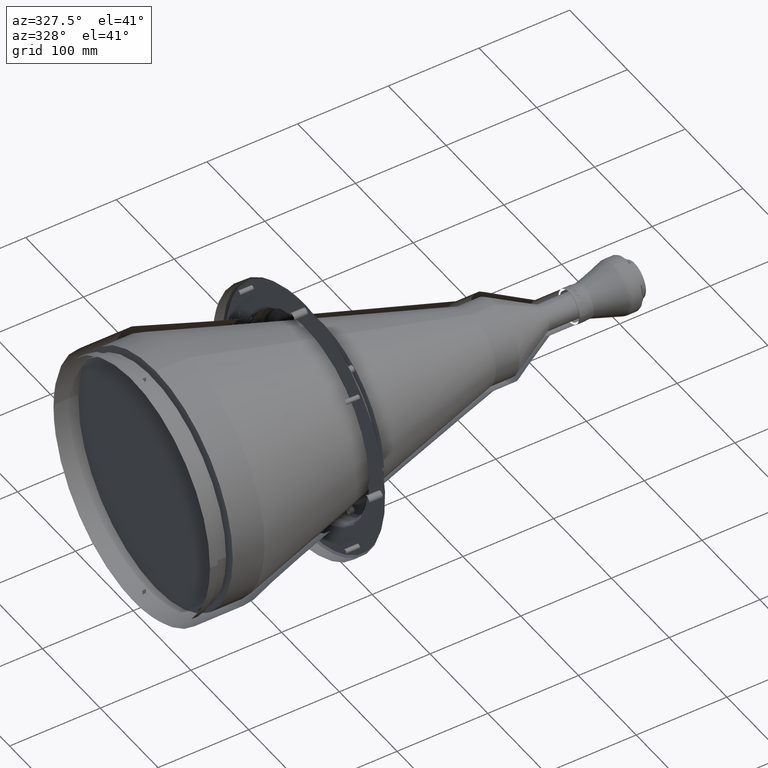
[diagram: clean part render]
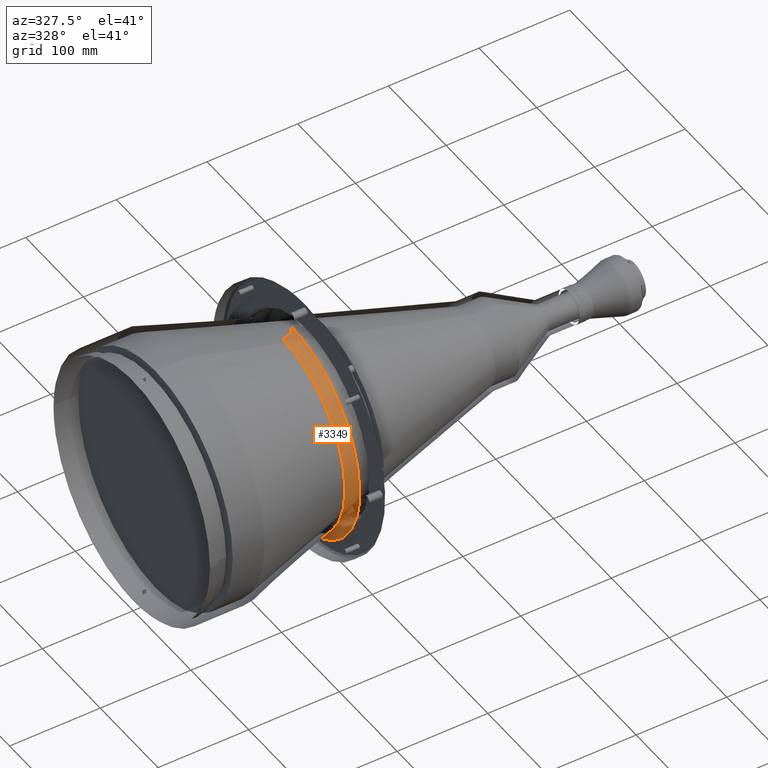
[diagram: same view with one face highlighted and labeled with its STEP entity id]
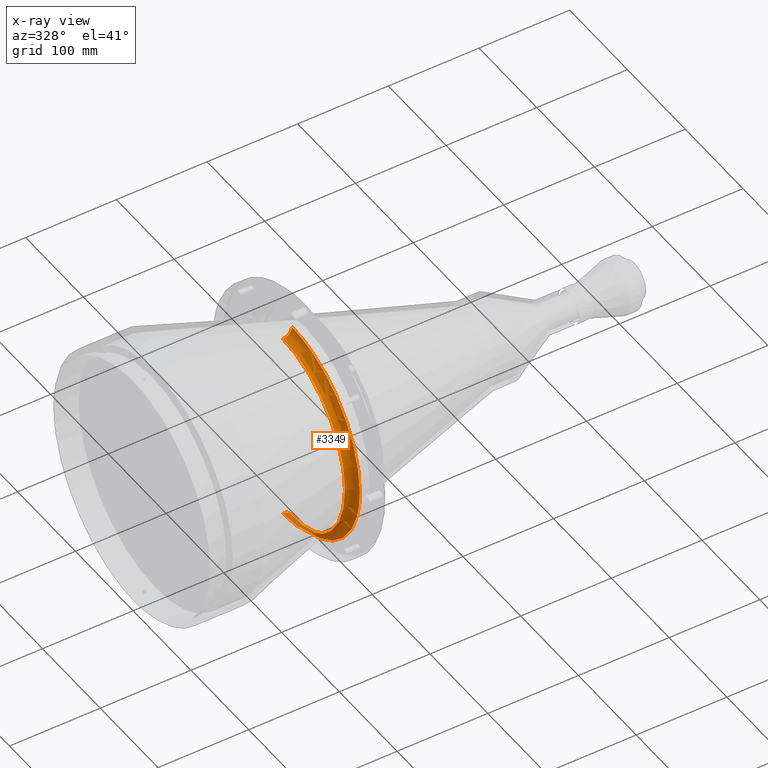
[diagram: x-ray of the same camera — body ghosted, the highlighted face saturated]
A machine part, auxiliary view. The second image highlights one B-rep face of the part: STEP entity #3349.
The next image is the same camera in x-ray: the body ghosted, the highlighted face saturated — about 4% of this face is hidden behind the body in this view.
In plain terms, the highlighted toroidal blend (fillet) surface has major radius 117.609 mm and minor (blend) radius 10 mm.
Its self-contained STEP definition (entity closure, byte-faithful):
#456 = CARTESIAN_POINT ( 'NONE',  ( 175.0000000000000284, -77.58758185754797410, 88.46957854625375717 ) ) ;
#604 = AXIS2_PLACEMENT_3D ( 'NONE', #29302, #46837, #20951 ) ;
#733 = CARTESIAN_POINT ( 'NONE',  ( 175.0000000000000000, -116.1005183095881534, 19.16686815566025714 ) ) ;
#1018 = CARTESIAN_POINT ( 'NONE',  ( 175.0000000000000000, -37.82573687722678812, 111.4267150029880753 ) ) ;
#1287 = CARTESIAN_POINT ( 'NONE',  ( 175.0000000000000284, -117.6089662599592458, 3.851671601944247847 ) ) ;
#1726 = CARTESIAN_POINT ( 'NONE',  ( 175.0000000000175078, -117.6089662599592032, 3.067063619554004160E-14 ) ) ;
#2278 = CARTESIAN_POINT ( 'NONE',  ( 174.9999999999999716, -88.46957854644563213, -77.58758185730505375 ) ) ;
#3349 = ADVANCED_FACE ( 'NONE', ( #24032 ), #53724, .T. ) ;
#4538 = CARTESIAN_POINT ( 'NONE',  ( 174.9999999999551221, 2.486294608482432372E-12, -117.6089662594366985 ) ) ;
#4632 = CARTESIAN_POINT ( 'NONE',  ( 175.0000000000000000, -30.45442474878679207, 113.6628123129379162 ) ) ;
#4643 = VERTEX_POINT ( 'NONE', #33756 ) ;
#4917 = CIRCLE ( 'NONE', #53771, 10.00000000041578829 ) ;
#5728 = CARTESIAN_POINT ( 'NONE',  ( 175.0000000000000000, -52.04376617182886378, 105.5374497149115172 ) ) ;
#5899 = CARTESIAN_POINT ( 'NONE',  ( 175.0000000000000284, -99.92807691576051354, -62.13764023188930707 ) ) ;
#6176 = CARTESIAN_POINT ( 'NONE',  ( 175.0000000000000000, -68.54245954286125198, -95.64851347245357260 ) ) ;
#6618 = EDGE_CURVE ( 'NONE', #18420, #4643, #33806, .T. ) ;
#6992 = CARTESIAN_POINT ( 'NONE',  ( 174.9999999999999432, -111.4267150030436966, -37.82573687679995800 ) ) ;
#7711 = VERTEX_POINT ( 'NONE', #54390 ) ;
#8817 = CARTESIAN_POINT ( 'NONE',  ( 174.9999999999999716, -71.63309484796943138, 93.35634211007626959 ) ) ;
#9098 = CARTESIAN_POINT ( 'NONE',  ( 175.0000000000000000, -26.72186765406294029, 114.5977354738205065 ) ) ;
#9379 = CARTESIAN_POINT ( 'NONE',  ( 175.0000000000000000, -68.54244134880185868, 95.64848624314511483 ) ) ;
#9939 = CARTESIAN_POINT ( 'NONE',  ( 175.0000000000000000, -41.44868219365366002, 110.1304391804323473 ) ) ;
#10909 = CARTESIAN_POINT ( 'NONE',  ( 175.0000000000000000, -41.44866966250280171, -110.1304089244272717 ) ) ;
#11180 = CARTESIAN_POINT ( 'NONE',  ( 174.9999999999999716, -117.4201931538463697, -7.694570589910745717 ) ) ;
#11521 = CIRCLE ( 'NONE', #32839, 107.6089662595371976 ) ;
#11575 = CARTESIAN_POINT ( 'NONE',  ( 164.9999999996994688, 2.916803486534448636E-12, 117.6089662610470725 ) ) ;
#11975 = EDGE_LOOP ( 'NONE', ( #48451, #49527, #33320, #29206, #31387 ) ) ;
#12996 = CARTESIAN_POINT ( 'NONE',  ( 175.0000000000000000, -62.13764023169893136, 99.92807691586550334 ) ) ;
#13164 = CARTESIAN_POINT ( 'NONE',  ( 175.0000000000000000, -19.16686815586605164, -116.1005183095766853 ) ) ;
#13826 = CARTESIAN_POINT ( 'NONE',  ( 175.0000000000000284, -101.9062756122196589, 58.83721509822800044 ) ) ;
#13979 = B_SPLINE_CURVE_WITH_KNOTS ( 'NONE', 3,
 ( #4538, #17336, #34300, #51295, #13164, #25970, #18985, #39845, #10909, #35678, #44018, #49297, #44829, #6176, #44288, #23430, #22888, #40385, #2278, #52927, #32306, #5899, #23700, #19520, #18716, #44559, #6992, #27877, #53198, #48492, #23163, #11180, #35943, #1726 ),
 .UNSPECIFIED., .F., .F.,
 ( 4, 2, 2, 2, 2, 2, 2, 2, 2, 2, 2, 2, 2, 2, 2, 2, 4 ),
 ( 0.5000000000000000000, 0.5312500000000001110, 0.5625000000000001110, 0.5937500000000002220, 0.6250000000000002220, 0.6562500000000003331, 0.6875000000000004441, 0.7187500000000003331, 0.7500000000000002220, 0.7812500000000002220, 0.8125000000000002220, 0.8437500000000002220, 0.8750000000000002220, 0.9062500000000001110, 0.9375000000000001110, 0.9687500000000000000, 1.000000000000000000 ),
 .UNSPECIFIED. ) ;
#14101 = CARTESIAN_POINT ( 'NONE',  ( 175.0000000000000284, -114.5977675928419899, 26.72187404363125651 ) ) ;
#15671 = DIRECTION ( 'NONE',  ( 1.000000000000000000, 1.875452609704880015E-13, -8.713002741898350444E-13 ) ) ;
#17336 = CARTESIAN_POINT ( 'NONE',  ( 175.0000000000000000, -3.851505344594875702, -117.6089826342010980 ) ) ;
#17715 = CARTESIAN_POINT ( 'NONE',  ( 175.0000000000000568, -19.16687454521785838, 116.1005504286767263 ) ) ;
#17860 = EDGE_CURVE ( 'NONE', #48347, #7711, #11521, .T. ) ;
#17988 = CARTESIAN_POINT ( 'NONE',  ( 175.0000000000000000, -110.1304089245597027, 41.44866966212622827 ) ) ;
#18078 = CARTESIAN_POINT ( 'NONE',  ( 164.9999999996907434, 2.915578839735246506E-12, 107.6089662606312629 ) ) ;
#18420 = VERTEX_POINT ( 'NONE', #36584 ) ;
#18541 = CARTESIAN_POINT ( 'NONE',  ( 174.9999999999999716, -3.852005739895582703, 117.6089662599997894 ) ) ;
#18716 = CARTESIAN_POINT ( 'NONE',  ( 175.0000000000000000, -107.1825943547162865, -48.56532357599358818 ) ) ;
#18985 = CARTESIAN_POINT ( 'NONE',  ( 174.9999999999999716, -30.45441524230032115, -113.6627809747378137 ) ) ;
#19520 = CARTESIAN_POINT ( 'NONE',  ( 174.9999999999999716, -105.5374497146883641, -52.04376617218397882 ) ) ;
#20951 = DIRECTION ( 'NONE',  ( 1.000000000000000000, 1.875452609704882286E-13, 0.000000000000000000 ) ) ;
#21614 = CARTESIAN_POINT ( 'NONE',  ( 175.0000000000000284, -105.5374208331779187, 52.04375073465400448 ) ) ;
#22163 = CARTESIAN_POINT ( 'NONE',  ( 174.9999999999999716, -116.6651496971322217, 15.36065544847628850 ) ) ;
#22447 = CARTESIAN_POINT ( 'NONE',  ( 174.9999999999999716, -88.46960386094670525, 77.58760263314842121 ) ) ;
#22836 = CIRCLE ( 'NONE', #604, 10.00000000041578829 ) ;
#22888 = CARTESIAN_POINT ( 'NONE',  ( 175.0000000000000000, -80.43866044570130214, -85.88551153922735182 ) ) ;
#23163 = CARTESIAN_POINT ( 'NONE',  ( 175.0000000000000284, -116.6651007293952773, -15.36081850992873221 ) ) ;
#23430 = CARTESIAN_POINT ( 'NONE',  ( 175.0000000000000000, -77.58760263306434979, -88.46960386097897810 ) ) ;
#23700 = CARTESIAN_POINT ( 'NONE',  ( 174.9999999999999432, -101.9062467307104924, -58.83719966069519103 ) ) ;
#24032 = FACE_OUTER_BOUND ( 'NONE', #11975, .T. ) ;
#25795 = CARTESIAN_POINT ( 'NONE',  ( 175.0000000000000000, -48.56532357690112178, 107.1825943544176738 ) ) ;
#25970 = CARTESIAN_POINT ( 'NONE',  ( 175.0000000000000284, -26.72187404342312078, -114.5977675929185438 ) ) ;
#26900 = CARTESIAN_POINT ( 'NONE',  ( 175.0000000000769944, 4.776905207635640969E-12, 117.6089662600000025 ) ) ;
#26930 = CARTESIAN_POINT ( 'NONE',  ( 174.9999999999551221, 2.486294608482432372E-12, -117.6089662594366985 ) ) ;
#27092 = AXIS2_PLACEMENT_3D ( 'NONE', #49352, #15671, #49900 ) ;
#27560 = EDGE_CURVE ( 'NONE', #4643, #48347, #4917, .T. ) ;
#27877 = CARTESIAN_POINT ( 'NONE',  ( 174.9999999999999716, -113.6628123128222256, -30.45442474922442599 ) ) ;
#28022 = VERTEX_POINT ( 'NONE', #26930 ) ;
#28535 = DIRECTION ( 'NONE',  ( -1.875452609704881024E-13, 1.000000000000000000, -1.224646797513270736E-16 ) ) ;
#28806 = DIRECTION ( 'NONE',  ( -1.000000000000000000, -1.875452609704883044E-13, 0.000000000000000000 ) ) ;
#29206 = ORIENTED_EDGE ( 'NONE', *, *, #54169, .F. ) ;
#29302 = CARTESIAN_POINT ( 'NONE',  ( 164.9999999994945199, 2.902400542126320333E-12, -117.6089662588589277 ) ) ;
#29967 = CARTESIAN_POINT ( 'NONE',  ( 175.0000000000000000, -7.694570589868866328, 117.4201931538858474 ) ) ;
#30522 = CARTESIAN_POINT ( 'NONE',  ( 175.0000000000000284, -95.64851347242012025, 68.54245954283778985 ) ) ;
#31387 = ORIENTED_EDGE ( 'NONE', *, *, #41836, .T. ) ;
#32306 = CARTESIAN_POINT ( 'NONE',  ( 175.0000000000000000, -95.64848624321066950, -68.54244134862970839 ) ) ;
#32839 = AXIS2_PLACEMENT_3D ( 'NONE', #33355, #46727, #54790 ) ;
#33320 = ORIENTED_EDGE ( 'NONE', *, *, #6618, .F. ) ;
#33355 = CARTESIAN_POINT ( 'NONE',  ( 164.9999999995970086, 2.902400542126319929E-12, 1.094075940955009918E-09 ) ) ;
#33756 = CARTESIAN_POINT ( 'NONE',  ( 175.0000000000769944, 4.776905207635640969E-12, 117.6089662600000025 ) ) ;
#33806 = B_SPLINE_CURVE_WITH_KNOTS ( 'NONE', 3,
 ( #52226, #1287, #48061, #22163, #733, #14101, #51942, #46941, #17988, #39137, #21614, #13826, #34399, #30522, #51121, #22447, #42756, #39404, #456, #8817, #9379, #12996, #38848, #5728, #25795, #9939, #1018, #4632, #9098, #17715, #34960, #29967, #18541, #26900 ),
 .UNSPECIFIED., .F., .F.,
 ( 4, 2, 2, 2, 2, 2, 2, 2, 2, 2, 2, 2, 2, 2, 2, 2, 4 ),
 ( 0.000000000000000000, 0.06250000000000002776, 0.1250000000000000555, 0.1875000000000000833, 0.2500000000000000555, 0.3125000000000000000, 0.3750000000000000000, 0.4374999999999999445, 0.4999999999999999445, 0.5624999999999998890, 0.6249999999999998890, 0.6875000000000000000, 0.7500000000000000000, 0.8125000000000000000, 0.8750000000000000000, 0.9375000000000001110, 1.000000000000000000 ),
 .UNSPECIFIED. ) ;
#34300 = CARTESIAN_POINT ( 'NONE',  ( 175.0000000000000000, -7.694733651436479249, -117.4201441861369233 ) ) ;
#34399 = CARTESIAN_POINT ( 'NONE',  ( 175.0000000000000000, -99.92804968654908748, 62.13762203768444436 ) ) ;
#34960 = CARTESIAN_POINT ( 'NONE',  ( 175.0000000000000284, -15.36081850996116316, 116.6651007294301650 ) ) ;
#35678 = CARTESIAN_POINT ( 'NONE',  ( 175.0000000000000568, -48.56533610805880130, -107.1826246104195377 ) ) ;
#35943 = CARTESIAN_POINT ( 'NONE',  ( 174.9999999999999716, -117.6089662599591890, -3.852005739937485185 ) ) ;
#36584 = CARTESIAN_POINT ( 'NONE',  ( 175.0000000000175078, -117.6089662599592032, 3.067063619554004160E-14 ) ) ;
#38848 = CARTESIAN_POINT ( 'NONE',  ( 175.0000000000000284, -58.83719966103515731, 101.9062467305333257 ) ) ;
#39137 = CARTESIAN_POINT ( 'NONE',  ( 175.0000000000000568, -107.1826246102364877, 48.56533610844356730 ) ) ;
#39404 = CARTESIAN_POINT ( 'NONE',  ( 175.0000000000000568, -80.43868360200968937, 85.88553469611795776 ) ) ;
#39845 = CARTESIAN_POINT ( 'NONE',  ( 175.0000000000000853, -37.82574638372086895, -111.4267463411858046 ) ) ;
#40385 = CARTESIAN_POINT ( 'NONE',  ( 175.0000000000000000, -85.88553469584169875, -80.43868360233923909 ) ) ;
#41836 = EDGE_CURVE ( 'NONE', #28022, #7711, #22836, .T. ) ;
#42756 = CARTESIAN_POINT ( 'NONE',  ( 175.0000000000000000, -85.88551153952994355, 80.43866044545210059 ) ) ;
#44018 = CARTESIAN_POINT ( 'NONE',  ( 175.0000000000000000, -52.04375073525880424, -105.5374208328305343 ) ) ;
#44288 = CARTESIAN_POINT ( 'NONE',  ( 175.0000000000000284, -71.63307407245704894, -93.35631679534742489 ) ) ;
#44559 = CARTESIAN_POINT ( 'NONE',  ( 175.0000000000000284, -110.1304391800806997, -41.44868219457379865 ) ) ;
#44829 = CARTESIAN_POINT ( 'NONE',  ( 175.0000000000000000, -62.13762203764432712, -99.92804968655360653 ) ) ;
#46727 = DIRECTION ( 'NONE',  ( 1.000000000000000000, 1.875452609704880015E-13, -8.713002741898350444E-13 ) ) ;
#46837 = DIRECTION ( 'NONE',  ( 1.875452609704880015E-13, -1.000000000000000000, -1.634082373065903679E-25 ) ) ;
#46941 = CARTESIAN_POINT ( 'NONE',  ( 175.0000000000000853, -111.4267463410885313, 37.82574638389498745 ) ) ;
#48061 = CARTESIAN_POINT ( 'NONE',  ( 175.0000000000000000, -117.4201441861095674, 7.694733651363634408 ) ) ;
#48347 = VERTEX_POINT ( 'NONE', #18078 ) ;
#48451 = ORIENTED_EDGE ( 'NONE', *, *, #17860, .F. ) ;
#48492 = CARTESIAN_POINT ( 'NONE',  ( 175.0000000000000284, -116.1005504286384564, -19.16687454523308887 ) ) ;
#49297 = CARTESIAN_POINT ( 'NONE',  ( 175.0000000000000568, -58.83721509761120672, -101.9062756126110969 ) ) ;
#49352 = CARTESIAN_POINT ( 'NONE',  ( 164.9999999995970086, 2.902400542126320333E-12, 1.094075940955009918E-09 ) ) ;
#49527 = ORIENTED_EDGE ( 'NONE', *, *, #27560, .F. ) ;
#49900 = DIRECTION ( 'NONE',  ( -8.713002741898350444E-13, 4.568705509687404842E-30, -1.000000000000000000 ) ) ;
#51121 = CARTESIAN_POINT ( 'NONE',  ( 175.0000000000000284, -93.35631679534766647, 71.63307407239456381 ) ) ;
#51295 = CARTESIAN_POINT ( 'NONE',  ( 174.9999999999999432, -15.36065544840313635, -116.6651496971778954 ) ) ;
#51942 = CARTESIAN_POINT ( 'NONE',  ( 175.0000000000000000, -113.6627809747770783, 30.45441524213131856 ) ) ;
#52226 = CARTESIAN_POINT ( 'NONE',  ( 175.0000000000175078, -117.6089662599592032, 3.067063619554004160E-14 ) ) ;
#52927 = CARTESIAN_POINT ( 'NONE',  ( 174.9999999999999716, -93.35634210985134018, -71.63309484823453488 ) ) ;
#53198 = CARTESIAN_POINT ( 'NONE',  ( 175.0000000000000000, -114.5977354737917580, -26.72186765405742293 ) ) ;
#53724 = TOROIDAL_SURFACE ( 'NONE', #27092, 117.6089662599529930, 10.00000000041579895 ) ;
#53771 = AXIS2_PLACEMENT_3D ( 'NONE', #11575, #28535, #28806 ) ;
#54169 = EDGE_CURVE ( 'NONE', #28022, #18420, #13979, .T. ) ;
#54390 = CARTESIAN_POINT ( 'NONE',  ( 164.9999999995032454, 2.902400542126318313E-12, -107.6089662584431323 ) ) ;
#54790 = DIRECTION ( 'NONE',  ( -8.712873814200851957E-13, 0.000000000000000000, -1.000000000000000000 ) ) ;